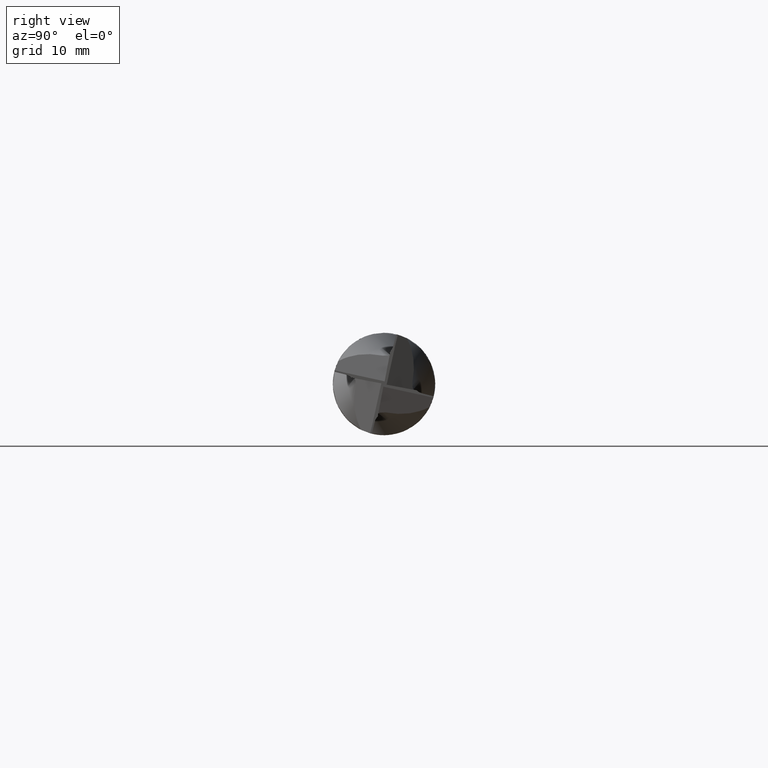
[diagram: clean part render]
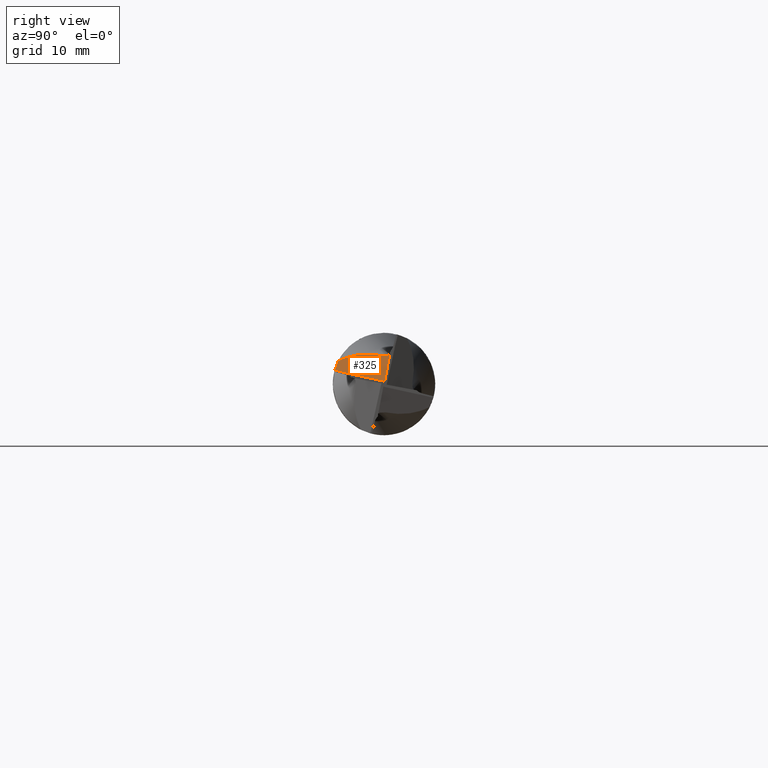
[diagram: same view with one face highlighted and labeled with its STEP entity id]
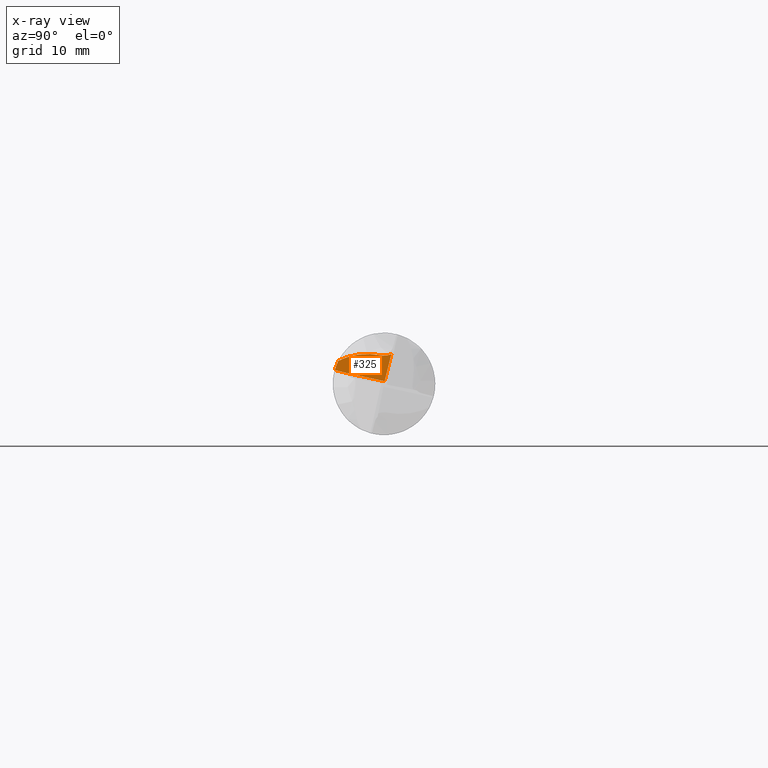
[diagram: x-ray of the same camera — body ghosted, the highlighted face saturated]
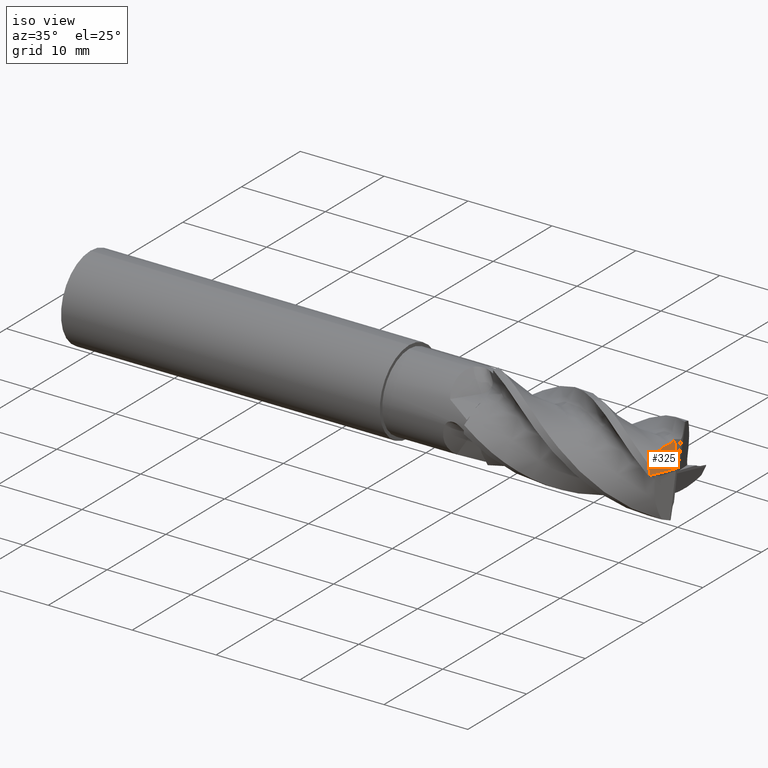
[diagram: same view with one face highlighted and labeled with its STEP entity id]
A machine part, right view. The second image highlights one B-rep face of the part: STEP entity #325.
The next image is the same camera in x-ray: the body ghosted, the highlighted face saturated — about 0% of this face is hidden behind the body in this view.
A second angle (iso view) of the same face is appended — the face is thin or edge-on in the first view.
In plain terms, the highlighted planar face has unit normal (0.9539, 0.0719, 0.2913).
Its self-contained STEP definition (entity closure, byte-faithful):
#1 = FACE_OUTER_BOUND ( 'NONE', #6226, .T. ) ;
#34 = VECTOR ( 'NONE', #3916, 1000.000000000000100 ) ;
#54 = LINE ( 'NONE', #3810, #34 ) ;
#135 = AXIS2_PLACEMENT_3D ( 'NONE', #7260, #7266, #7267 ) ;
#147 = EDGE_CURVE ( 'NONE', #3953, #3928, #54, .T. ) ;
#177 = EDGE_CURVE ( 'NONE', #3971, #3972, #4368, .T. ) ;
#186 = EDGE_CURVE ( 'NONE', #3974, #3928, #252, .T. ) ;
#200 = EDGE_CURVE ( 'NONE', #3962, #3974, #277, .T. ) ;
#252 = B_SPLINE_CURVE_WITH_KNOTS ( 'NONE', 3,
 ( #957, #978, #979, #980 ),
 .UNSPECIFIED., .F., .F.,
 ( 4, 4 ),
 ( 0.003956564749712889900, 0.004021288792547611300 ),
 .UNSPECIFIED. ) ;
#277 = B_SPLINE_CURVE_WITH_KNOTS ( 'NONE', 3,
 ( #1010, #1014, #1015, #1016, #1017, #1018, #1019, #1020 ),
 .UNSPECIFIED., .F., .F.,
 ( 4, 2, 2, 4 ),
 ( 2.297047150954461000E-005, 0.001989767610611217300, 0.002973166180162053900, 0.003956564749712889900 ),
 .UNSPECIFIED. ) ;
#285 = B_SPLINE_CURVE_WITH_KNOTS ( 'NONE', 3,
 ( #3762, #3775, #3776, #3777, #3778, #3779, #3780, #3781, #3782, #3783, #3784, #3785, #3786, #3787, #3788, #3789 ),
 .UNSPECIFIED., .F., .F.,
 ( 4, 2, 2, 2, 2, 2, 2, 4 ),
 ( 0.002293712214768991900, 0.002953628090643765700, 0.003283586028581152400, 0.003448564997549846000, 0.003613543966518540000, 0.004933375718268086800, 0.006253207470017634400, 0.007573039221767181200 ),
 .UNSPECIFIED. ) ;
#325 = ADVANCED_FACE ( 'NONE', ( #1 ), #7257, .T. ) ;
#419 = EDGE_CURVE ( 'NONE', #3972, #3962, #4386, .T. ) ;
#440 = EDGE_CURVE ( 'NONE', #3953, #3971, #285, .T. ) ;
#956 = CARTESIAN_POINT ( 'NONE',  ( 29.70262055360494100, -4.470051940391921400, 2.240231159991879800 ) ) ;
#957 = CARTESIAN_POINT ( 'NONE',  ( 29.96745137697612200, 8.450756820208414500E-016, 0.2702972241239496900 ) ) ;
#962 = CARTESIAN_POINT ( 'NONE',  ( 29.80038370766315800, -4.612829728464536300, 1.955339073846108500 ) ) ;
#963 = CARTESIAN_POINT ( 'NONE',  ( 29.89981194599344100, -4.727804439567346900, 1.658135754008953900 ) ) ;
#964 = CARTESIAN_POINT ( 'NONE',  ( 30.00000000000000000, -4.813929258459307200, 1.351327160442497200 ) ) ;
#978 = CARTESIAN_POINT ( 'NONE',  ( 29.96740745477902800, 0.02098401713535008600, 0.2652642388483337800 ) ) ;
#979 = CARTESIAN_POINT ( 'NONE',  ( 29.96738456721429200, 0.04195453853401602500, 0.2601657071977755400 ) ) ;
#980 = CARTESIAN_POINT ( 'NONE',  ( 29.96738456721450600, 0.06290818322276289800, 0.2549963960231972400 ) ) ;
#1010 = CARTESIAN_POINT ( 'NONE',  ( 30.00000000000000000, -3.842424216416199900, 1.111654686086677600 ) ) ;
#1014 = CARTESIAN_POINT ( 'NONE',  ( 29.99429188429973800, -3.201829411854339100, 0.9723091649659201300 ) ) ;
#1015 = CARTESIAN_POINT ( 'NONE',  ( 29.98858432582654700, -2.561234982458072900, 0.8329619118149366200 ) ) ;
#1016 = CARTESIAN_POINT ( 'NONE',  ( 29.98007745837428200, -1.600380011683168300, 0.6237717220590025500 ) ) ;
#1017 = CARTESIAN_POINT ( 'NONE',  ( 29.97724425042811100, -1.280096647066538500, 0.5540341536931384600 ) ) ;
#1018 = CARTESIAN_POINT ( 'NONE',  ( 29.97170399006800400, -0.6396148548677549300, 0.4141668874239785600 ) ) ;
#1019 = CARTESIAN_POINT ( 'NONE',  ( 29.96811871825922700, -0.3188251464301926100, 0.3467669609302175300 ) ) ;
#1020 = CARTESIAN_POINT ( 'NONE',  ( 29.96745137697612200, 8.450756820208414500E-016, 0.2702972241239496900 ) ) ;
#3692 = CARTESIAN_POINT ( 'NONE',  ( 30.00000000000000700, 3.808591601212987200, -0.7758680883602654400 ) ) ;
#3693 = DIRECTION ( 'NONE',  ( 0.0000000000000000000, 0.9708911757510297900, -0.2395210321637392700 ) ) ;
#3762 = CARTESIAN_POINT ( 'NONE',  ( 29.10649564881542200, 0.7184389477193701100, 2.912170294004728700 ) ) ;
#3775 = CARTESIAN_POINT ( 'NONE',  ( 29.14819960330812200, 0.5156279703887667300, 2.825648782203686400 ) ) ;
#3776 = CARTESIAN_POINT ( 'NONE',  ( 29.17947649600155600, 0.2988489022850313000, 2.776715602531309600 ) ) ;
#3777 = CARTESIAN_POINT ( 'NONE',  ( 29.20896061224108600, -0.03622377020099434200, 2.762835988063500700 ) ) ;
#3778 = CARTESIAN_POINT ( 'NONE',  ( 29.21559518722241900, -0.1473982650252726700, 2.768538732105730600 ) ) ;
#3779 = CARTESIAN_POINT ( 'NONE',  ( 29.21956920481822800, -0.3131933655722927700, 2.796428231691197900 ) ) ;
#3780 = CARTESIAN_POINT ( 'NONE',  ( 29.22029806625577200, -0.3683621686598442200, 2.807651915230951800 ) ) ;
#3781 = CARTESIAN_POINT ( 'NONE',  ( 29.22279968464165700, -0.4788628015509279700, 2.826721369743603800 ) ) ;
#3782 = CARTESIAN_POINT ( 'NONE',  ( 29.22424012979953600, -0.5341416416342416000, 2.835642189812233000 ) ) ;
#3783 = CARTESIAN_POINT ( 'NONE',  ( 29.23900850321802000, -1.031922601908298100, 2.910088305722453600 ) ) ;
#3784 = CARTESIAN_POINT ( 'NONE',  ( 29.26483299823839700, -1.476304363146142300, 2.935158553078832400 ) ) ;
#3785 = CARTESIAN_POINT ( 'NONE',  ( 29.34503719943272400, -2.369362949060013900, 2.892857461720185400 ) ) ;
#3786 = CARTESIAN_POINT ( 'NONE',  ( 29.39875094498130900, -2.808896841948900700, 2.825411162788340900 ) ) ;
#3787 = CARTESIAN_POINT ( 'NONE',  ( 29.53202579724229800, -3.661732787132273800, 2.599412507541612300 ) ) ;
#3788 = CARTESIAN_POINT ( 'NONE',  ( 29.61213824113417600, -4.077486310967117300, 2.439659636211287000 ) ) ;
#3789 = CARTESIAN_POINT ( 'NONE',  ( 29.70262055360494100, -4.470051940391921400, 2.240231159991879800 ) ) ;
#3810 = CARTESIAN_POINT ( 'NONE',  ( 21.82060511352337800, 6.266338671554020600, 25.40041208706961100 ) ) ;
#3916 = DIRECTION ( 'NONE',  ( 0.3000610647291735400, -0.2284839018759407800, -0.9261525058094590700 ) ) ;
#3928 = VERTEX_POINT ( 'NONE', #4290 ) ;
#3953 = VERTEX_POINT ( 'NONE', #4313 ) ;
#3962 = VERTEX_POINT ( 'NONE', #4321 ) ;
#3971 = VERTEX_POINT ( 'NONE', #4330 ) ;
#3972 = VERTEX_POINT ( 'NONE', #4331 ) ;
#3974 = VERTEX_POINT ( 'NONE', #4333 ) ;
#4290 = CARTESIAN_POINT ( 'NONE',  ( 29.96738456721450600, 0.06290818322276289800, 0.2549963960231972400 ) ) ;
#4313 = CARTESIAN_POINT ( 'NONE',  ( 29.10649564881542200, 0.7184389477193701100, 2.912170294004728700 ) ) ;
#4321 = CARTESIAN_POINT ( 'NONE',  ( 30.00000000000000000, -3.842424216416199900, 1.111654686086677600 ) ) ;
#4330 = CARTESIAN_POINT ( 'NONE',  ( 29.70262055360494100, -4.470051940391921400, 2.240231159991879800 ) ) ;
#4331 = CARTESIAN_POINT ( 'NONE',  ( 30.00000000000000000, -4.813929258459307200, 1.351327160442497200 ) ) ;
#4333 = CARTESIAN_POINT ( 'NONE',  ( 29.96745137697612200, 8.450756820208414500E-016, 0.2702972241239496900 ) ) ;
#4368 =( BOUNDED_CURVE ( )  B_SPLINE_CURVE ( 3, ( #956, #962, #963, #964 ),
 .UNSPECIFIED., .F., .T. ) 
 B_SPLINE_CURVE_WITH_KNOTS ( ( 4, 4 ),
 ( 1.348090077961660000, 1.539000107229572300 ),
 .UNSPECIFIED. ) 
 CURVE ( )  GEOMETRIC_REPRESENTATION_ITEM ( )  RATIONAL_B_SPLINE_CURVE ( ( 1.000000000000000000, 0.9969650855363282300, 0.9969650855363282300, 1.000000000000000000 ) ) 
 REPRESENTATION_ITEM ( '' )  );
#4386 = LINE ( 'NONE', #3692, #4389 ) ;
#4389 = VECTOR ( 'NONE', #3693, 1000.000000000000000 ) ;
#6142 = ORIENTED_EDGE ( 'NONE', *, *, #147, .F. ) ;
#6219 = ORIENTED_EDGE ( 'NONE', *, *, #177, .T. ) ;
#6226 = EDGE_LOOP ( 'NONE', ( #6274, #6301, #6142, #6275, #6219, #6294 ) ) ;
#6274 = ORIENTED_EDGE ( 'NONE', *, *, #200, .T. ) ;
#6275 = ORIENTED_EDGE ( 'NONE', *, *, #440, .T. ) ;
#6294 = ORIENTED_EDGE ( 'NONE', *, *, #419, .T. ) ;
#6301 = ORIENTED_EDGE ( 'NONE', *, *, #186, .T. ) ;
#7257 = PLANE ( 'NONE',  #135 ) ;
#7260 = CARTESIAN_POINT ( 'NONE',  ( 21.82060511352337800, 6.266338671554020600, 25.40041208706961100 ) ) ;
#7266 = DIRECTION ( 'NONE',  ( 0.9539199953002320800, 0.07187093593608222300, 0.2913266399320131300 ) ) ;
#7267 = DIRECTION ( 'NONE',  ( 0.2920819813345448300, 0.0000000000000000000, -0.9563932853066705600 ) ) ;